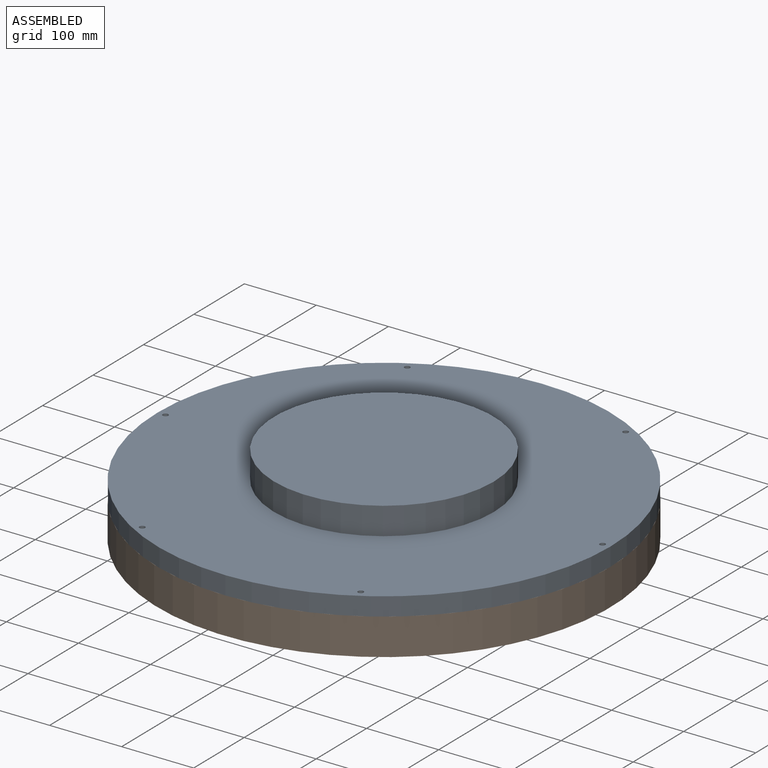
[diagram: assembled view]
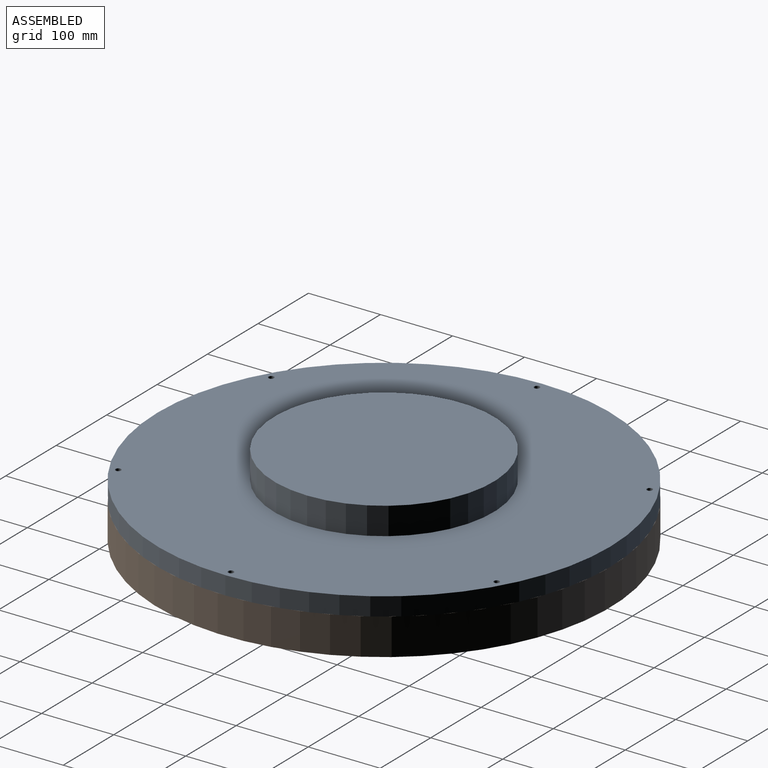
[diagram: assembled view, second angle]
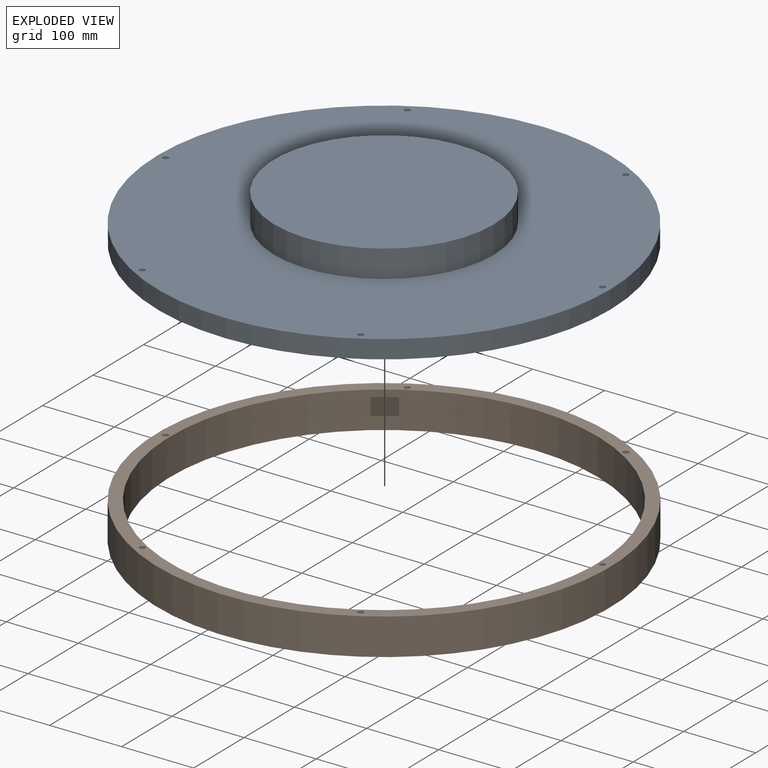
[diagram: exploded view]
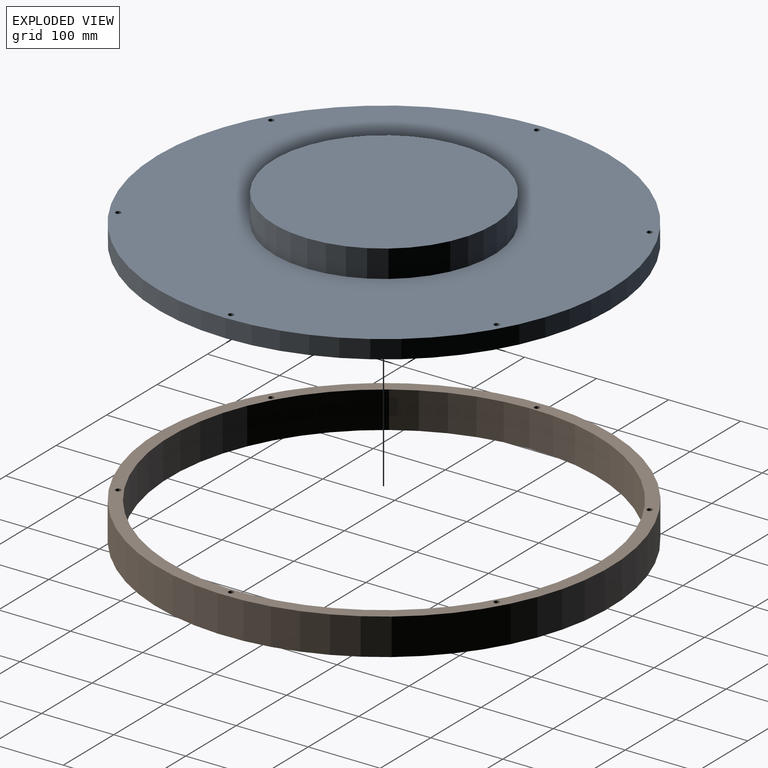
[diagram: exploded view, second angle]
ASSEMBLY  parts=2 mates=2
PART A: 11 faces, bbox 628.7x628.7x63.5 mm
  f0: cylinder r=3.81mm len=25.4mm, axis (0,0,-1), area 608mm2, adj f6,f7
  f1: cylinder r=3.81mm len=25.4mm, axis (0,0,-1), area 608mm2, adj f6,f7
  f2: cylinder r=3.81mm len=25.4mm, axis (0,0,-1), area 608mm2, adj f6,f7
  f3: cylinder r=3.81mm len=25.4mm, axis (0,0,-1), area 608mm2, adj f6,f7
  f4: cylinder r=3.81mm len=25.4mm, axis (0,0,-1), area 608mm2, adj f6,f7
  f5: cylinder r=3.81mm len=25.4mm, axis (0,0,-1), area 608mm2, adj f6,f7
  f6: plane 628.65x628.65mm, normal (0,0,1), area 237150.5mm2, adj f0,f1,f2,f3,f4,f5,f8,f9
  f7: plane 628.65x628.65mm, normal (0,0,-1), area 310116.4mm2, adj f0,f1,f2,f3,f4,f5,f8
  f8: cylinder r=314.33mm len=628.65mm, axis (0,0,-1), area 50164mm2, adj f6,f7
  f9: cylinder r=152.4mm len=304.8mm, axis (0,0,-1), area 36482.9mm2, adj f6,f10
  f10: plane 304.8x304.8mm, normal (0,0,1), area 72965.9mm2, adj f9
PART B: 10 faces, bbox 628.7x628.7x50.8 mm
  f0: cylinder r=3.81mm len=50.8mm, axis (0,0,-1), area 1216.1mm2, adj f7,f8
  f1: cylinder r=3.81mm len=50.8mm, axis (0,0,-1), area 1216.1mm2, adj f7,f8
  f2: cylinder r=3.81mm len=50.8mm, axis (0,0,-1), area 1216.1mm2, adj f7,f8
  f3: cylinder r=3.81mm len=50.8mm, axis (0,0,-1), area 1216.1mm2, adj f7,f8
  f4: cylinder r=3.81mm len=50.8mm, axis (0,0,-1), area 1216.1mm2, adj f7,f8
  f5: cylinder r=3.81mm len=50.8mm, axis (0,0,-1), area 1216.1mm2, adj f7,f8
  f6: cylinder r=296.93mm len=593.85mm, axis (0,0,-1), area 94774.6mm2, adj f7,f8
  f7: plane 628.65x628.65mm, normal (0,0,1), area 33137.7mm2, adj f0,f1,f2,f3,f4,f5,f6,f9
  f8: plane 628.65x628.65mm, normal (0,0,-1), area 33137.7mm2, adj f0,f1,f2,f3,f4,f5,f6,f9
  f9: cylinder r=314.33mm len=628.65mm, axis (0,0,-1), area 100328.1mm2, adj f7,f8
PLACE A t=(-302.36,23.49,-59.44)mm
PLACE B rot(axis=(0,0,1),4.4deg) t=(-302.36,23.49,-110.24)mm
MATE revolute A.f1 <-> B.f1  axis (0,0,-1) through (-605.64,23.49,-59.44)mm
MATE revolute A.f0 <-> B.f0  axis (0,0,-1) through (-454,286.14,-59.44)mm
